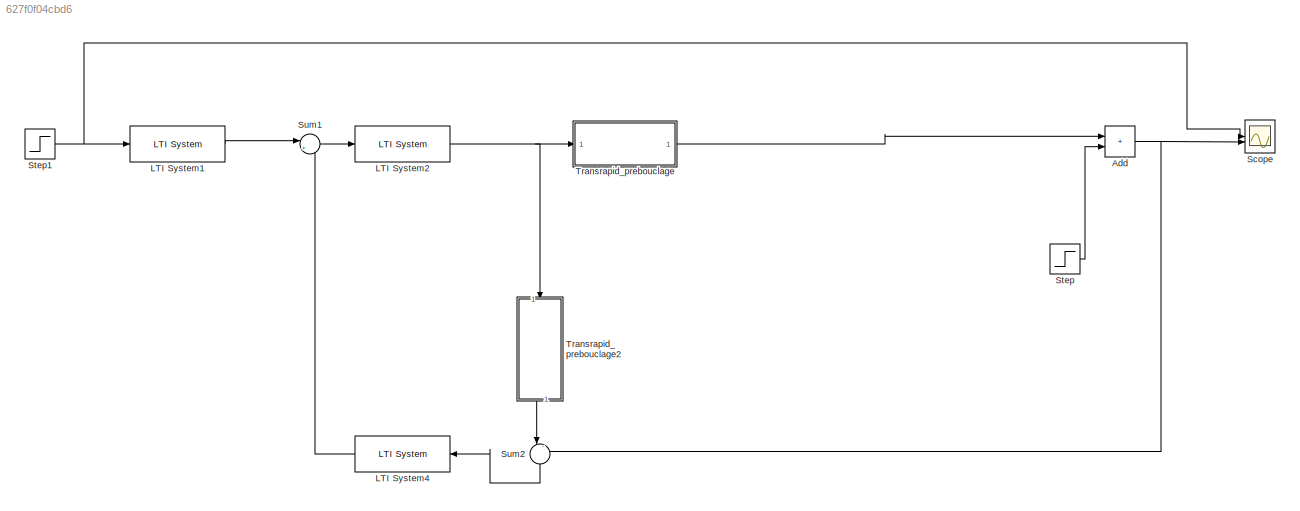
MODEL slx_627f0f04cbd6
KIND model
CONFIG AbsTol = auto
CONFIG EnableMultiTasking = off
CONFIG FixedStep = auto
CONFIG MaxStep = Te/10
CONFIG MinStep = auto
CONFIG RelTol = 1e-3
CONFIG SampleTimeConstraint = Unconstrained
CONFIG SolverName = VariableStepAuto
CONFIG StartTime = 0.0
CONFIG StopTime = 3
BLOCK [Sum] Add
  IconShape = rectangular
BLOCK [Reference] LTI System1  REF=cstblocks/LTI System
  SourceBlock = cstblocks/LTI System
  SourceType = LTI Block
BLOCK [Reference] LTI System2  REF=cstblocks/LTI System
  SourceBlock = cstblocks/LTI System
  SourceType = LTI Block
BLOCK [Reference] LTI System4  REF=cstblocks/LTI System
  NameLocation = top
  SourceBlock = cstblocks/LTI System
  SourceType = LTI Block
BLOCK [Scope] Scope
  Floating = off
  NumInputPorts = 2
  ScopeSpecificationString = Simulink.scopes.TimeScopeBlockCfg('CurrentConfiguration', extmgr.ConfigurationSet(extmgr.Configuration('Core','General UI',true,'FigureColor',[1 1 1]),extmgr.Configuration('Core','Source UI',true),extmgr.Configuration('Sources','WiredSimulink',true),extmgr.Configuration('Visuals','Time Domain',true,'SerializedDisplays',{struct('MinYLimReal','-0.0018','MaxYLimReal','0.01035','YLabelReal','','MinYLi...<+1621ch>
BLOCK [Step] Step
  After = 0.002
  SampleTime = 0
  Time = 2.5
BLOCK [Step] Step1
  After = 0.005
  SampleTime = 0
  Time = 2
BLOCK [Sum] Sum1
  Inputs = |+-
BLOCK [Sum] Sum2
  Inputs = |-+
  NameLocation = left
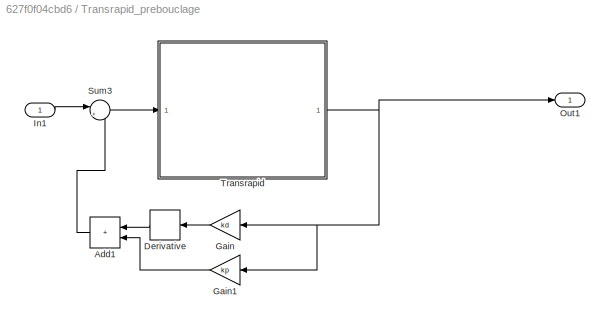
BLOCK [SubSystem] Transrapid_prebouclage
BLOCK [Sum] Transrapid_prebouclage/Add1
  IconShape = rectangular
  NameLocation = top
BLOCK [Derivative] Transrapid_prebouclage/Derivative
  NameLocation = top
BLOCK [Gain] Transrapid_prebouclage/Gain
  Gain = kd
  NameLocation = top
BLOCK [Gain] Transrapid_prebouclage/Gain1
  Gain = kp
  NameLocation = top
BLOCK [Inport] Transrapid_prebouclage/In1
BLOCK [Outport] Transrapid_prebouclage/Out1
BLOCK [Sum] Transrapid_prebouclage/Sum3
  Inputs = |+-
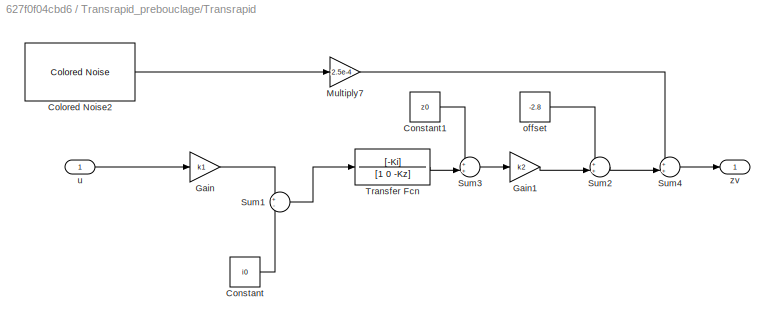
BLOCK [SubSystem] Transrapid_prebouclage/Transrapid
BLOCK [Reference] Transrapid_prebouclage/Transrapid/Colored Noise2  REF=dspsrcs4/Colored Noise
  SourceBlock = dspsrcs4/Colored Noise
  SourceType = dsp.simulink.ColoredNoise
BLOCK [Constant] Transrapid_prebouclage/Transrapid/Constant
  Value = i0
BLOCK [Constant] Transrapid_prebouclage/Transrapid/Constant1
  Value = z0
BLOCK [Gain] Transrapid_prebouclage/Transrapid/Gain
  Gain = k1
BLOCK [Gain] Transrapid_prebouclage/Transrapid/Gain1
  Gain = k2
BLOCK [Gain] Transrapid_prebouclage/Transrapid/Multiply7
  Gain = 2.5e-4
BLOCK [Sum] Transrapid_prebouclage/Transrapid/Sum1
  Inputs = +-
  NameLocation = top
BLOCK [Sum] Transrapid_prebouclage/Transrapid/Sum2
  Inputs = ++|
BLOCK [Sum] Transrapid_prebouclage/Transrapid/Sum3
  Inputs = ++|
BLOCK [Sum] Transrapid_prebouclage/Transrapid/Sum4
  Inputs = ++|
BLOCK [TransferFcn] Transrapid_prebouclage/Transrapid/Transfer Fcn
  Denominator = [1 0 -Kz]
  Numerator = [-Ki]
BLOCK [Constant] Transrapid_prebouclage/Transrapid/offset
  Value = -2.8
BLOCK [Inport] Transrapid_prebouclage/Transrapid/u
BLOCK [Outport] Transrapid_prebouclage/Transrapid/zv
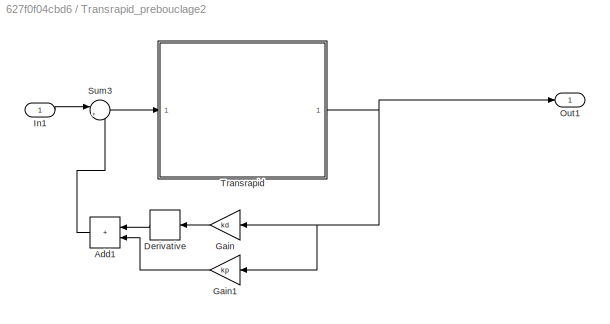
BLOCK [SubSystem] Transrapid_prebouclage2
  NameLocation = left
BLOCK [Sum] Transrapid_prebouclage2/Add1
  IconShape = rectangular
  NameLocation = top
BLOCK [Derivative] Transrapid_prebouclage2/Derivative
  NameLocation = top
BLOCK [Gain] Transrapid_prebouclage2/Gain
  Gain = kd
  NameLocation = top
BLOCK [Gain] Transrapid_prebouclage2/Gain1
  Gain = kp
  NameLocation = top
BLOCK [Inport] Transrapid_prebouclage2/In1
BLOCK [Outport] Transrapid_prebouclage2/Out1
BLOCK [Sum] Transrapid_prebouclage2/Sum3
  Inputs = |+-
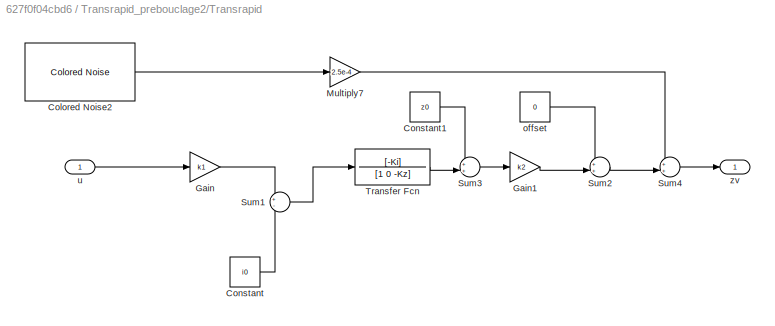
BLOCK [SubSystem] Transrapid_prebouclage2/Transrapid
BLOCK [Reference] Transrapid_prebouclage2/Transrapid/Colored Noise2  REF=dspsrcs4/Colored Noise
  SourceBlock = dspsrcs4/Colored Noise
  SourceType = dsp.simulink.ColoredNoise
BLOCK [Constant] Transrapid_prebouclage2/Transrapid/Constant
  Value = i0
BLOCK [Constant] Transrapid_prebouclage2/Transrapid/Constant1
  Value = z0
BLOCK [Gain] Transrapid_prebouclage2/Transrapid/Gain
  Gain = k1
BLOCK [Gain] Transrapid_prebouclage2/Transrapid/Gain1
  Gain = k2
BLOCK [Gain] Transrapid_prebouclage2/Transrapid/Multiply7
  Gain = 2.5e-4
BLOCK [Sum] Transrapid_prebouclage2/Transrapid/Sum1
  Inputs = +-
  NameLocation = top
BLOCK [Sum] Transrapid_prebouclage2/Transrapid/Sum2
  Inputs = ++|
BLOCK [Sum] Transrapid_prebouclage2/Transrapid/Sum3
  Inputs = ++|
BLOCK [Sum] Transrapid_prebouclage2/Transrapid/Sum4
  Inputs = ++|
BLOCK [TransferFcn] Transrapid_prebouclage2/Transrapid/Transfer Fcn
  Denominator = [1 0 -Kz]
  Numerator = [-Ki]
BLOCK [Constant] Transrapid_prebouclage2/Transrapid/offset
  Value = 0
BLOCK [Inport] Transrapid_prebouclage2/Transrapid/u
BLOCK [Outport] Transrapid_prebouclage2/Transrapid/zv
NET Add:1 -> Scope:2, Sum2:2
LINE LTI System1:1 -> Sum1:1
NET LTI System2:1 -> Transrapid_prebouclage2:1, Transrapid_prebouclage:1
LINE LTI System4:1 -> Sum1:2
NET Step1:1 -> LTI System1:1, Scope:1
LINE Step:1 -> Add:2
LINE Sum1:1 -> LTI System2:1
LINE Sum2:1 -> LTI System4:1
LINE Transrapid_prebouclage/Add1:1 -> Transrapid_prebouclage/Sum3:2
LINE Transrapid_prebouclage/Derivative:1 -> Transrapid_prebouclage/Add1:1
LINE Transrapid_prebouclage/Gain1:1 -> Transrapid_prebouclage/Add1:2
LINE Transrapid_prebouclage/Gain:1 -> Transrapid_prebouclage/Derivative:1
LINE Transrapid_prebouclage/In1:1 -> Transrapid_prebouclage/Sum3:1
LINE Transrapid_prebouclage/Sum3:1 -> Transrapid_prebouclage/Transrapid:1
LINE Transrapid_prebouclage/Transrapid/Colored Noise2:1 -> Transrapid_prebouclage/Transrapid/Multiply7:1
LINE Transrapid_prebouclage/Transrapid/Constant1:1 -> Transrapid_prebouclage/Transrapid/Sum3:1
LINE Transrapid_prebouclage/Transrapid/Constant:1 -> Transrapid_prebouclage/Transrapid/Sum1:2
LINE Transrapid_prebouclage/Transrapid/Gain1:1 -> Transrapid_prebouclage/Transrapid/Sum2:2
LINE Transrapid_prebouclage/Transrapid/Gain:1 -> Transrapid_prebouclage/Transrapid/Sum1:1
LINE Transrapid_prebouclage/Transrapid/Multiply7:1 -> Transrapid_prebouclage/Transrapid/Sum4:1
LINE Transrapid_prebouclage/Transrapid/Sum1:1 -> Transrapid_prebouclage/Transrapid/Transfer Fcn:1
LINE Transrapid_prebouclage/Transrapid/Sum2:1 -> Transrapid_prebouclage/Transrapid/Sum4:2
LINE Transrapid_prebouclage/Transrapid/Sum3:1 -> Transrapid_prebouclage/Transrapid/Gain1:1
LINE Transrapid_prebouclage/Transrapid/Sum4:1 -> Transrapid_prebouclage/Transrapid/zv:1
LINE Transrapid_prebouclage/Transrapid/Transfer Fcn:1 -> Transrapid_prebouclage/Transrapid/Sum3:2
LINE Transrapid_prebouclage/Transrapid/offset:1 -> Transrapid_prebouclage/Transrapid/Sum2:1
LINE Transrapid_prebouclage/Transrapid/u:1 -> Transrapid_prebouclage/Transrapid/Gain:1
NET Transrapid_prebouclage/Transrapid:1 -> Transrapid_prebouclage/Gain1:1, Transrapid_prebouclage/Gain:1, Transrapid_prebouclage/Out1:1
LINE Transrapid_prebouclage2/Add1:1 -> Transrapid_prebouclage2/Sum3:2
LINE Transrapid_prebouclage2/Derivative:1 -> Transrapid_prebouclage2/Add1:1
LINE Transrapid_prebouclage2/Gain1:1 -> Transrapid_prebouclage2/Add1:2
LINE Transrapid_prebouclage2/Gain:1 -> Transrapid_prebouclage2/Derivative:1
LINE Transrapid_prebouclage2/In1:1 -> Transrapid_prebouclage2/Sum3:1
LINE Transrapid_prebouclage2/Sum3:1 -> Transrapid_prebouclage2/Transrapid:1
LINE Transrapid_prebouclage2/Transrapid/Colored Noise2:1 -> Transrapid_prebouclage2/Transrapid/Multiply7:1
LINE Transrapid_prebouclage2/Transrapid/Constant1:1 -> Transrapid_prebouclage2/Transrapid/Sum3:1
LINE Transrapid_prebouclage2/Transrapid/Constant:1 -> Transrapid_prebouclage2/Transrapid/Sum1:2
LINE Transrapid_prebouclage2/Transrapid/Gain1:1 -> Transrapid_prebouclage2/Transrapid/Sum2:2
LINE Transrapid_prebouclage2/Transrapid/Gain:1 -> Transrapid_prebouclage2/Transrapid/Sum1:1
LINE Transrapid_prebouclage2/Transrapid/Multiply7:1 -> Transrapid_prebouclage2/Transrapid/Sum4:1
LINE Transrapid_prebouclage2/Transrapid/Sum1:1 -> Transrapid_prebouclage2/Transrapid/Transfer Fcn:1
LINE Transrapid_prebouclage2/Transrapid/Sum2:1 -> Transrapid_prebouclage2/Transrapid/Sum4:2
LINE Transrapid_prebouclage2/Transrapid/Sum3:1 -> Transrapid_prebouclage2/Transrapid/Gain1:1
LINE Transrapid_prebouclage2/Transrapid/Sum4:1 -> Transrapid_prebouclage2/Transrapid/zv:1
LINE Transrapid_prebouclage2/Transrapid/Transfer Fcn:1 -> Transrapid_prebouclage2/Transrapid/Sum3:2
LINE Transrapid_prebouclage2/Transrapid/offset:1 -> Transrapid_prebouclage2/Transrapid/Sum2:1
LINE Transrapid_prebouclage2/Transrapid/u:1 -> Transrapid_prebouclage2/Transrapid/Gain:1
NET Transrapid_prebouclage2/Transrapid:1 -> Transrapid_prebouclage2/Gain1:1, Transrapid_prebouclage2/Gain:1, Transrapid_prebouclage2/Out1:1
LINE Transrapid_prebouclage2:1 -> Sum2:1
LINE Transrapid_prebouclage:1 -> Add:1
note: NET lines group one-source signal fan-out (src -> all destinations, sorted); 1:1 wires keep LINE
